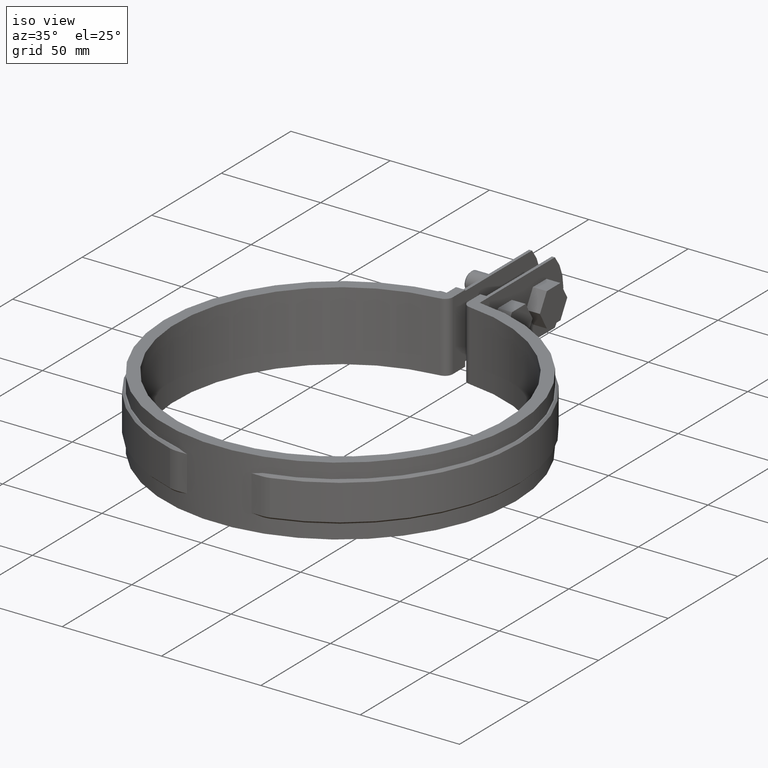
[diagram: clean part render]
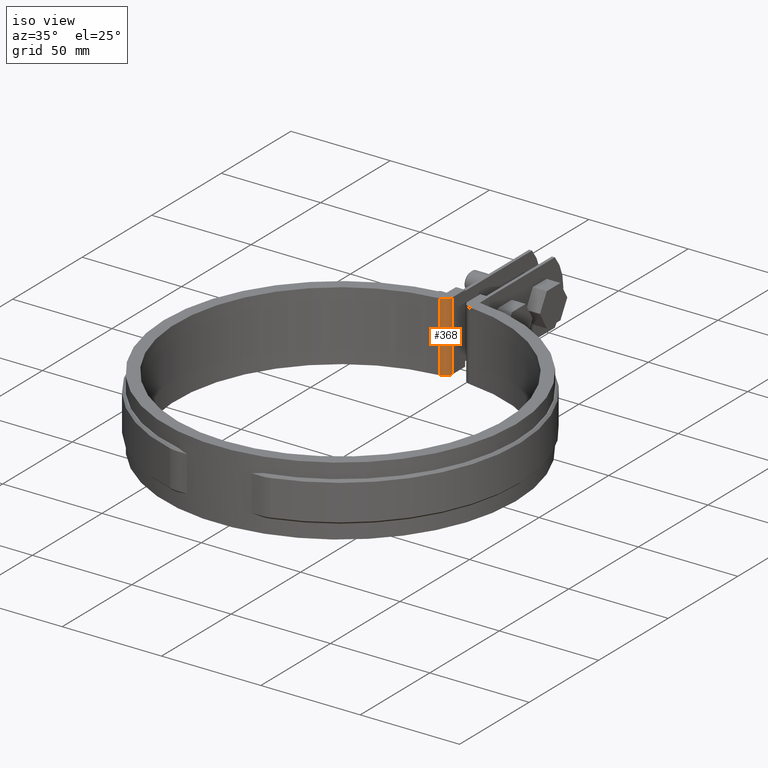
[diagram: same view with one face highlighted and labeled with its STEP entity id]
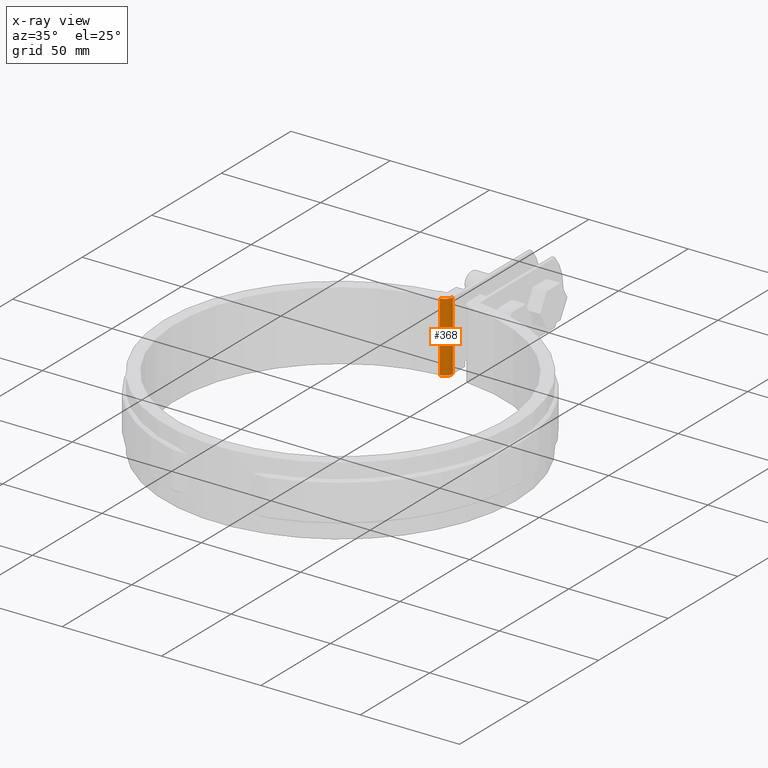
[diagram: x-ray of the same camera — body ghosted, the highlighted face saturated]
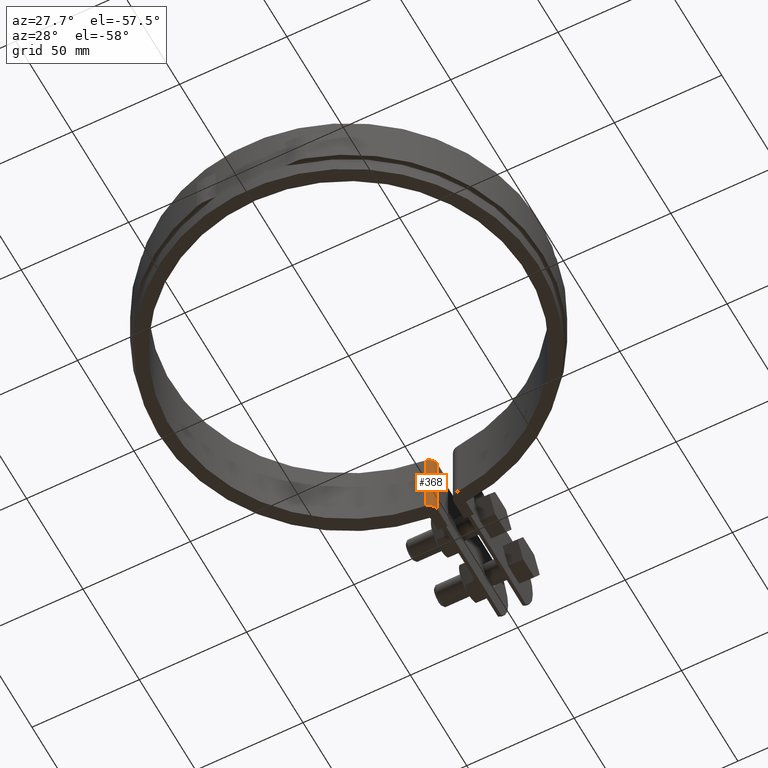
[diagram: same view with one face highlighted and labeled with its STEP entity id]
A machine part, iso view. The second image highlights one B-rep face of the part: STEP entity #368.
The next image is the same camera in x-ray: the body ghosted, the highlighted face saturated — about 0% of this face is hidden behind the body in this view.
A second angle (auxiliary view) of the same face is appended — the face is thin or edge-on in the first view.
In plain terms, the highlighted cylindrical surface (edge-blend (fillet) strip) has radius 4 mm, axis along (0, -0, -1).
Its self-contained STEP definition (entity closure, byte-faithful):
#368 = ADVANCED_FACE( '', ( #592 ), #593, .T. );
#592 = FACE_OUTER_BOUND( '', #1678, .T. );
#593 = CYLINDRICAL_SURFACE( '', #1679, 4.00000000000000 );
#1678 = EDGE_LOOP( '', ( #3843, #3844, #3845, #3846 ) );
#1679 = AXIS2_PLACEMENT_3D( '', #3847, #3848, #3849 );
#3843 = ORIENTED_EDGE( '', *, *, #4784, .F. );
#3844 = ORIENTED_EDGE( '', *, *, #4783, .F. );
#3845 = ORIENTED_EDGE( '', *, *, #4785, .T. );
#3846 = ORIENTED_EDGE( '', *, *, #4786, .T. );
#3847 = CARTESIAN_POINT( '', ( -7.79999999999998, 86.2480144698995, -33.5000000000000 ) );
#3848 = DIRECTION( '', ( 0.000000000000000, -2.54514470950076E-019, -1.00000000000000 ) );
#3849 = DIRECTION( '', ( 0.000000000000000, 1.00000000000000, -2.54514470950076E-019 ) );
#4783 = EDGE_CURVE( '', #5293, #5291, #5295, .T. );
#4784 = EDGE_CURVE( '', #5291, #5296, #5297, .T. );
#4785 = EDGE_CURVE( '', #5293, #5298, #5299, .T. );
#4786 = EDGE_CURVE( '', #5298, #5296, #5300, .T. );
#5291 = VERTEX_POINT( '', #8022 );
#5293 = VERTEX_POINT( '', #8024 );
#5295 = LINE( '', #8026, #8027 );
#5296 = VERTEX_POINT( '', #8028 );
#5297 = CIRCLE( '', #8029, 4.00000000000000 );
#5298 = VERTEX_POINT( '', #8030 );
#5299 = CIRCLE( '', #8031, 4.00000000000000 );
#5300 = LINE( '', #8032, #8033 );
#8022 = CARTESIAN_POINT( '', ( -7.43972286374120, 82.2642724620520, 1.50000000000000 ) );
#8024 = CARTESIAN_POINT( '', ( -7.43972286374120, 82.2642724620520, -33.5000000000000 ) );
#8026 = CARTESIAN_POINT( '', ( -7.43972286374120, 82.2642724620520, -33.5000000000000 ) );
#8027 = VECTOR( '', #8831, 1000.00000000000 );
#8028 = CARTESIAN_POINT( '', ( -3.79999999999998, 86.2480144698995, 1.50000000000000 ) );
#8029 = AXIS2_PLACEMENT_3D( '', #8832, #8833, #8834 );
#8030 = CARTESIAN_POINT( '', ( -3.79999999999998, 86.2480144698995, -33.5000000000000 ) );
#8031 = AXIS2_PLACEMENT_3D( '', #8835, #8836, #8837 );
#8032 = CARTESIAN_POINT( '', ( -3.79999999999998, 86.2480144698995, -33.5000000000000 ) );
#8033 = VECTOR( '', #8838, 1000.00000000000 );
#8831 = DIRECTION( '', ( 0.000000000000000, 2.54514470950076E-019, 1.00000000000000 ) );
#8832 = CARTESIAN_POINT( '', ( -7.79999999999998, 86.2480144698995, 1.50000000000000 ) );
#8833 = DIRECTION( '', ( 0.000000000000000, 2.54514470950076E-019, 1.00000000000000 ) );
#8834 = DIRECTION( '', ( 1.00000000000000, 0.000000000000000, 0.000000000000000 ) );
#8835 = CARTESIAN_POINT( '', ( -7.79999999999998, 86.2480144698995, -33.5000000000000 ) );
#8836 = DIRECTION( '', ( 0.000000000000000, 2.54514470950076E-019, 1.00000000000000 ) );
#8837 = DIRECTION( '', ( 1.00000000000000, 0.000000000000000, 0.000000000000000 ) );
#8838 = DIRECTION( '', ( 0.000000000000000, 2.54514470950076E-019, 1.00000000000000 ) );